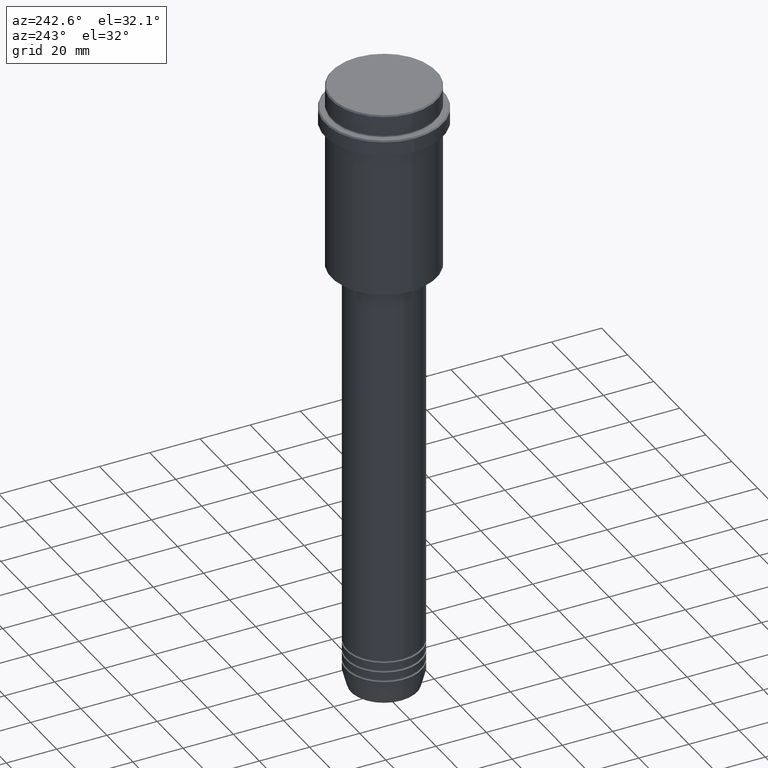
[diagram: clean part render]
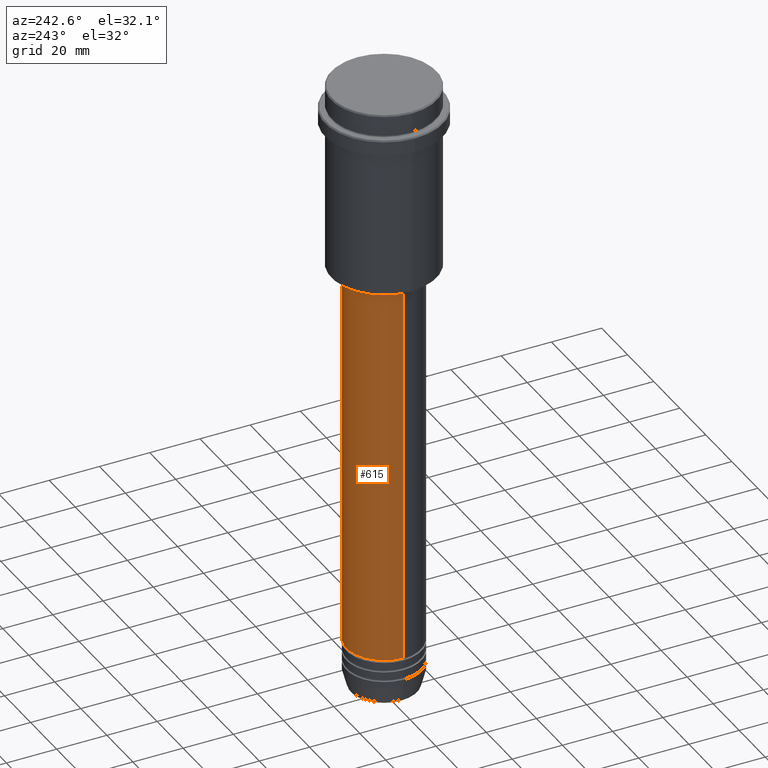
[diagram: same view with one face highlighted and labeled with its STEP entity id]
A machine part, auxiliary view. The second image highlights one B-rep face of the part: STEP entity #615.
In plain terms, the highlighted cylindrical surface (partial cylindrical patch) has radius 15 mm, axis along (-0, -0, 1).
Its self-contained STEP definition (entity closure, byte-faithful):
#52 = CARTESIAN_POINT ( 'NONE',  ( -15.00000000000000000, 1.836970198721029589E-15, -230.9999999999998863 ) ) ;
#123 = ORIENTED_EDGE ( 'NONE', *, *, #465, .F. ) ;
#161 = DIRECTION ( 'NONE',  ( -0.000000000000000000, -0.000000000000000000, 1.000000000000000000 ) ) ;
#165 = CARTESIAN_POINT ( 'NONE',  ( 15.00000000000000000, 0.000000000000000000, -76.00000000000001421 ) ) ;
#170 = VERTEX_POINT ( 'NONE', #52 ) ;
#175 = AXIS2_PLACEMENT_3D ( 'NONE', #316, #752, #760 ) ;
#226 = EDGE_CURVE ( 'NONE', #170, #944, #718, .T. ) ;
#247 = LINE ( 'NONE', #792, #1342 ) ;
#268 = CYLINDRICAL_SURFACE ( 'NONE', #953, 15.00000000000000000 ) ;
#275 = CARTESIAN_POINT ( 'NONE',  ( 0.000000000000000000, 0.000000000000000000, 0.000000000000000000 ) ) ;
#316 = CARTESIAN_POINT ( 'NONE',  ( 0.000000000000000000, 0.000000000000000000, -76.00000000000001421 ) ) ;
#403 = CIRCLE ( 'NONE', #1206, 15.00000000000000000 ) ;
#465 = EDGE_CURVE ( 'NONE', #883, #1040, #247, .T. ) ;
#477 = CARTESIAN_POINT ( 'NONE',  ( -15.00000000000000000, 1.836970198721029589E-15, 0.000000000000000000 ) ) ;
#533 = EDGE_LOOP ( 'NONE', ( #1154, #1030, #1230, #123 ) ) ;
#615 = ADVANCED_FACE ( 'NONE', ( #820 ), #268, .T. ) ;
#718 = LINE ( 'NONE', #477, #1389 ) ;
#752 = DIRECTION ( 'NONE',  ( -0.000000000000000000, -0.000000000000000000, 1.000000000000000000 ) ) ;
#758 = EDGE_CURVE ( 'NONE', #1040, #944, #764, .T. ) ;
#760 = DIRECTION ( 'NONE',  ( 1.000000000000000000, 0.000000000000000000, 0.000000000000000000 ) ) ;
#764 = CIRCLE ( 'NONE', #175, 15.00000000000000000 ) ;
#783 = DIRECTION ( 'NONE',  ( -0.000000000000000000, -0.000000000000000000, 1.000000000000000000 ) ) ;
#791 = CARTESIAN_POINT ( 'NONE',  ( 0.000000000000000000, 0.000000000000000000, -230.9999999999998863 ) ) ;
#792 = CARTESIAN_POINT ( 'NONE',  ( 15.00000000000000000, 0.000000000000000000, 0.000000000000000000 ) ) ;
#820 = FACE_OUTER_BOUND ( 'NONE', #533, .T. ) ;
#871 = EDGE_CURVE ( 'NONE', #883, #170, #403, .T. ) ;
#883 = VERTEX_POINT ( 'NONE', #1014 ) ;
#941 = DIRECTION ( 'NONE',  ( 1.000000000000000000, 0.000000000000000000, 0.000000000000000000 ) ) ;
#944 = VERTEX_POINT ( 'NONE', #1103 ) ;
#953 = AXIS2_PLACEMENT_3D ( 'NONE', #275, #161, #941 ) ;
#987 = DIRECTION ( 'NONE',  ( 1.000000000000000000, 0.000000000000000000, 0.000000000000000000 ) ) ;
#994 = DIRECTION ( 'NONE',  ( -0.000000000000000000, -0.000000000000000000, 1.000000000000000000 ) ) ;
#1011 = DIRECTION ( 'NONE',  ( -0.000000000000000000, -0.000000000000000000, 1.000000000000000000 ) ) ;
#1014 = CARTESIAN_POINT ( 'NONE',  ( 15.00000000000000000, 0.000000000000000000, -230.9999999999998863 ) ) ;
#1030 = ORIENTED_EDGE ( 'NONE', *, *, #226, .T. ) ;
#1040 = VERTEX_POINT ( 'NONE', #165 ) ;
#1103 = CARTESIAN_POINT ( 'NONE',  ( -15.00000000000000000, 1.836970198721029589E-15, -76.00000000000001421 ) ) ;
#1154 = ORIENTED_EDGE ( 'NONE', *, *, #871, .T. ) ;
#1206 = AXIS2_PLACEMENT_3D ( 'NONE', #791, #994, #987 ) ;
#1230 = ORIENTED_EDGE ( 'NONE', *, *, #758, .F. ) ;
#1342 = VECTOR ( 'NONE', #783, 1000.000000000000000 ) ;
#1389 = VECTOR ( 'NONE', #1011, 1000.000000000000000 ) ;